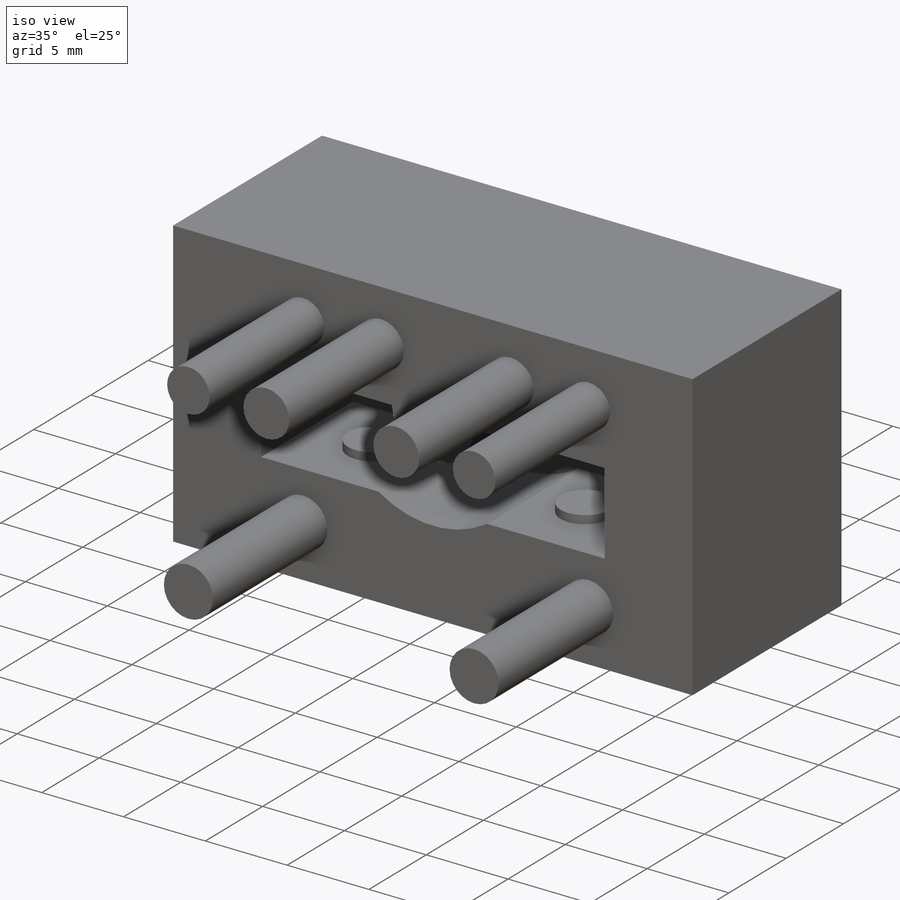
[diagram: iso view]
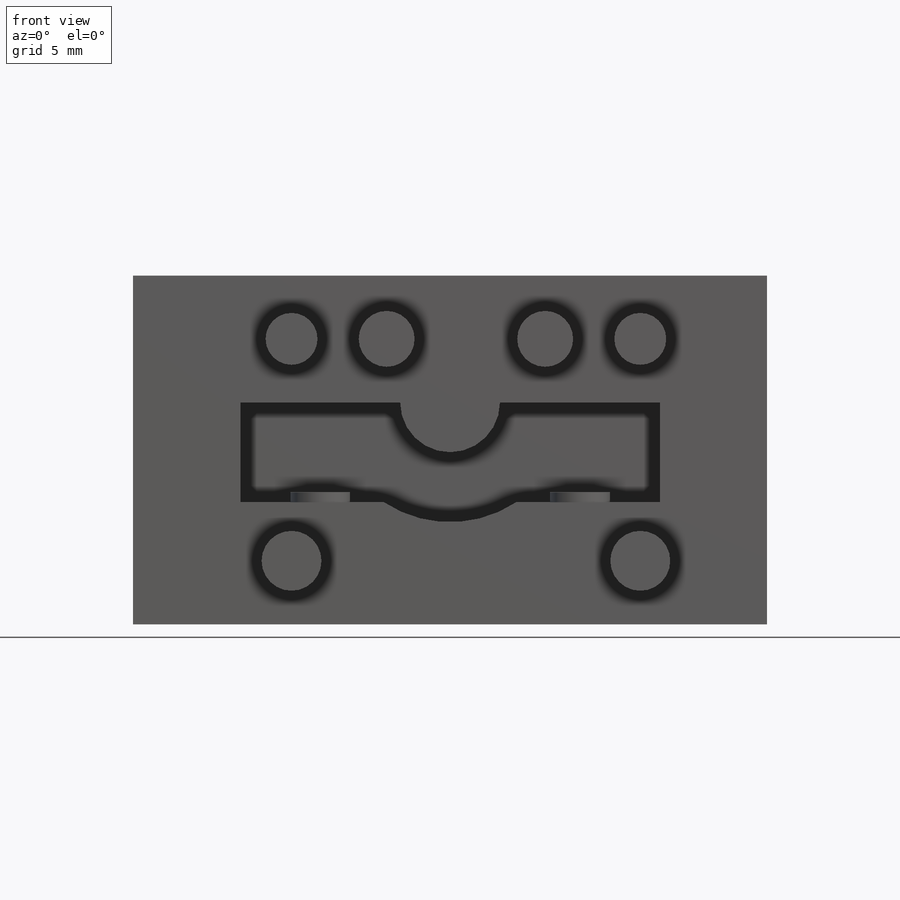
[diagram: front view]
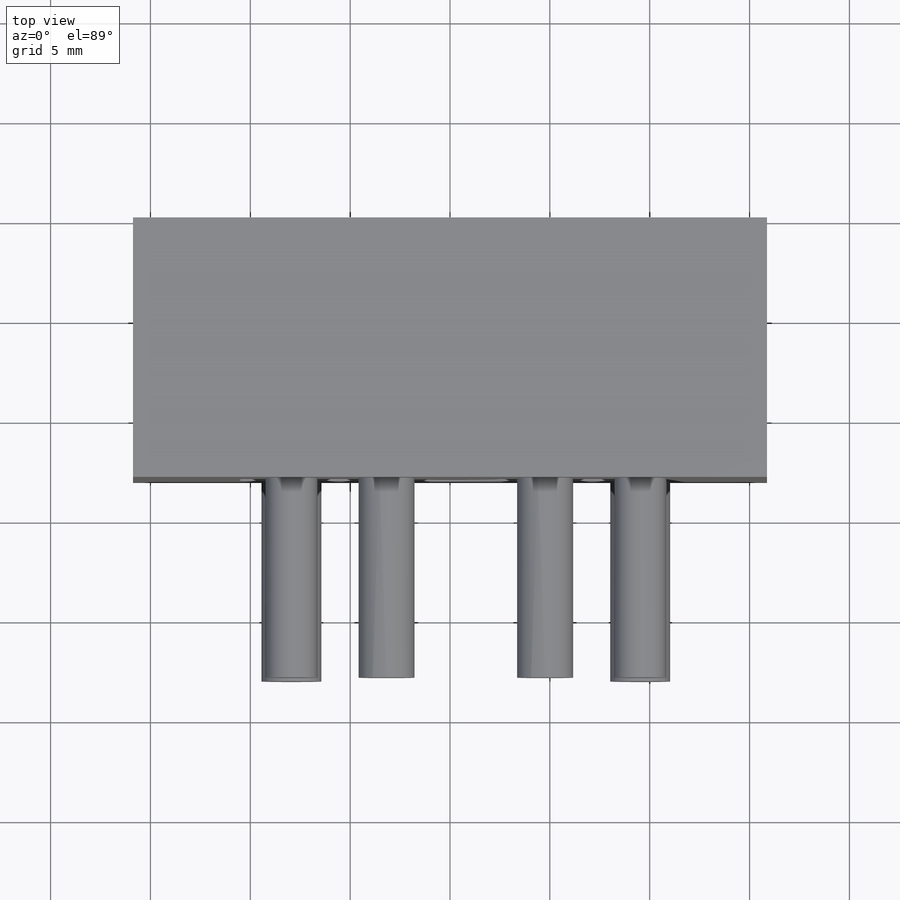
[diagram: top view]
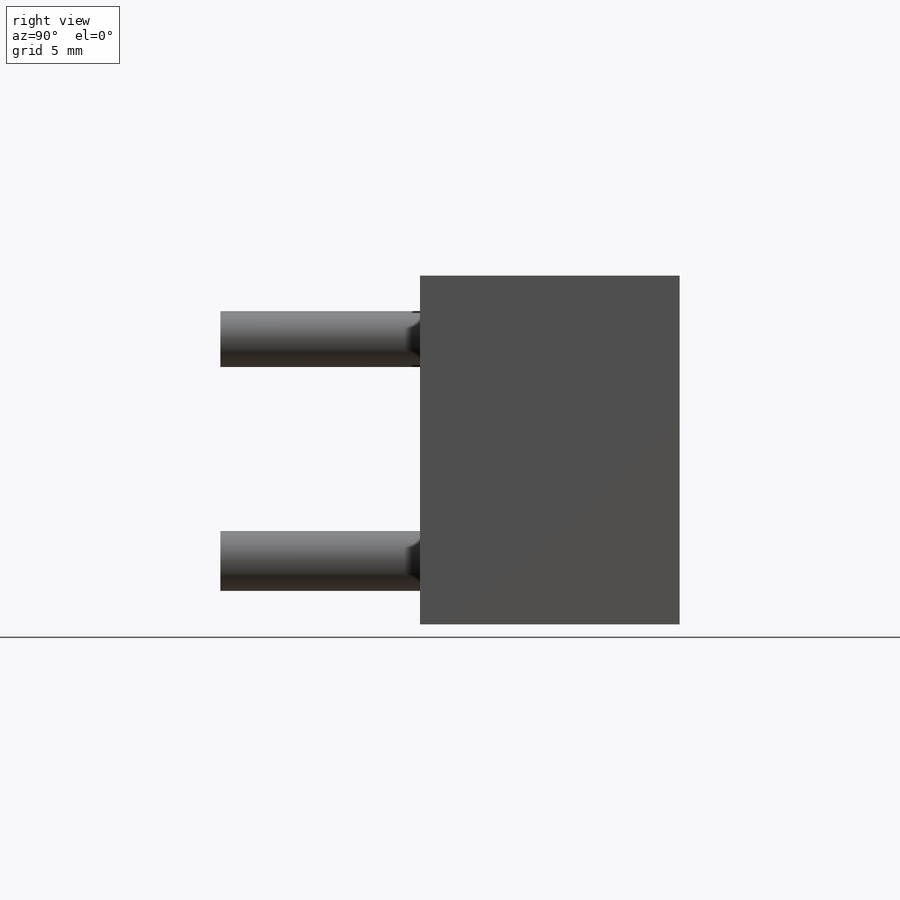
[diagram: right view]
SOLIDWORKS PART (.sldprt)
format: sldprt  version: not decoded by parser v0  size: 262,144 bytes
history: native  units: mm
features: sketch x6, extrude x4, material x1, cut_extrude x1 (+15 scaffold rows collapsed)
feature tree (27):
  scaffold x15  (default folders/planes/origin — collapsed)
  material  "Material <not specified>"
  sketch  "Sketch1"  dims[D1=23.75mm]
  extrude  "Extrude1"  Depth=5mm
  sketch  "Sketch2"  dims[D1=5.0mm]
  extrude  "Extrude2"  Depth=8mm
  sketch  "Sketch7"  dims[D1=21.0mm D2=8.0mm]
  sketch  "Sketch9"
  cut_extrude  "Extrude4"  [1 undecoded]
  sketch  "Sketch10"  dims[D1=5.0mm]
  extrude  "Extrude5"  Depth=10mm
  sketch  "Sketch11"  dims[D1=~1.509333mm]
  extrude  "Extrude6"  Depth=0.5mm
decode coverage: 9 of 11 modeling features carry decoded parameters
note: ~ marks probable driven/reference dimensions
note: 1 parameter value undecoded
note: suppression state not decoded; provenance and decode notes live in map.json
